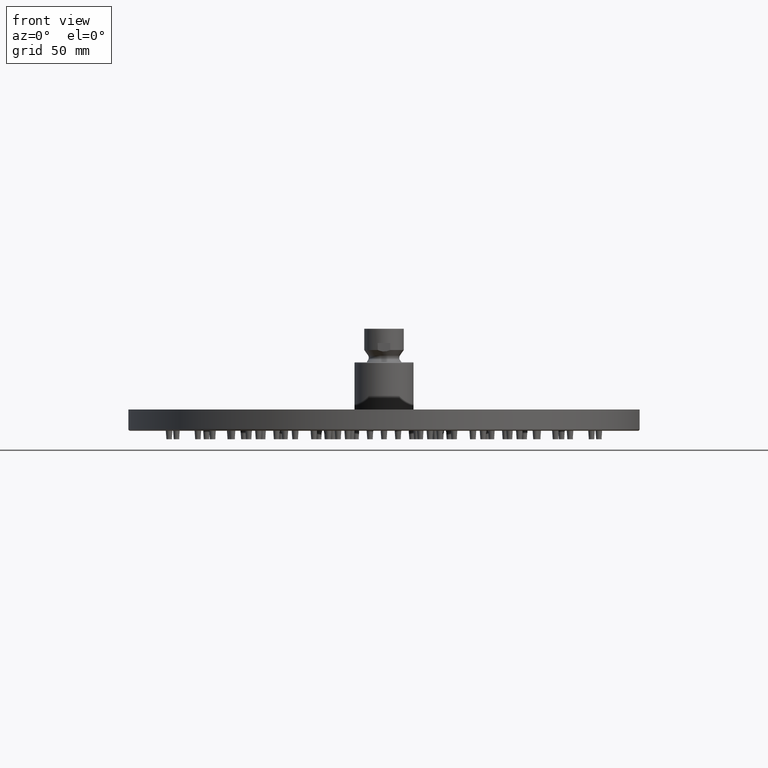
[diagram: clean part render]
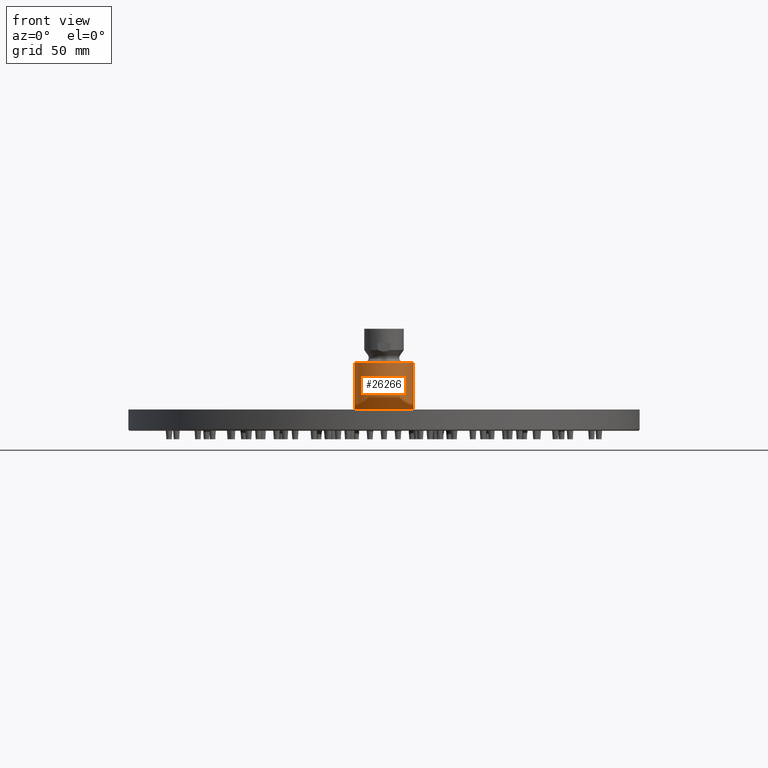
[diagram: same view with one face highlighted and labeled with its STEP entity id]
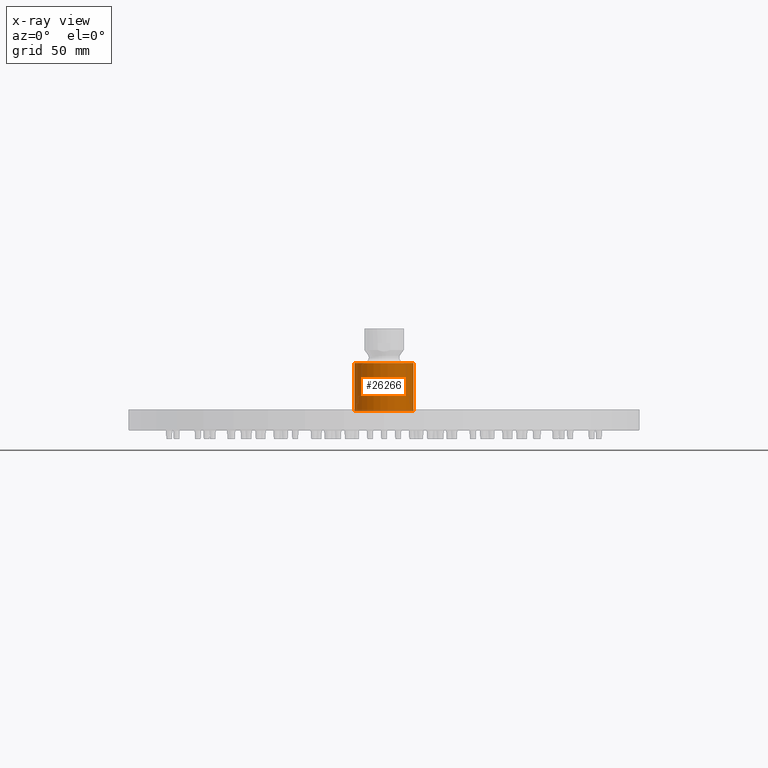
[diagram: x-ray of the same camera — body ghosted, the highlighted face saturated]
A machine part, front view. The second image highlights one B-rep face of the part: STEP entity #26266.
The next image is the same camera in x-ray: the body ghosted, the highlighted face saturated — about 3% of this face is hidden behind the body in this view.
In plain terms, the highlighted cylindrical surface (bore or boss wall) has radius 17.4 mm, axis along (0, -0, 1).
Its self-contained STEP definition (entity closure, byte-faithful):
#25982=CARTESIAN_POINT('',(17.4,0.,11.));
#25983=VERTEX_POINT('Vertex973',#25982);
#25984=CARTESIAN_POINT('',(-4.9960036108132E-016,7.7715611723761E-016,11.));
#25985=DIRECTION('',(0.,-0.,1.));
#25986=DIRECTION('',(1.,-4.46641446688281E-017,1.0208947352875E-016));
#25987=AXIS2_PLACEMENT_3D('',#25984,#25985,#25986);
#25988=CIRCLE('',#25987,17.4);
#25989=EDGE_CURVE('Edge973',#25983,#25983,#25988,.T.);
#26198=CARTESIAN_POINT('',(-17.4,2.13081505565094E-015,39.3));
#26199=VERTEX_POINT('Vertex2110',#26198);
#26200=CARTESIAN_POINT('',(17.4,0.,39.3));
#26201=VERTEX_POINT('Vertex982',#26200);
#26202=CARTESIAN_POINT('',(-2.1094237467878E-015,-2.66453525910038E-015,39.3));
#26203=DIRECTION('',(0.,0.,1.));
#26204=DIRECTION('',(-1.,2.75594845675363E-016,0.));
#26205=AXIS2_PLACEMENT_3D('',#26202,#26203,#26204);
#26206=CIRCLE('',#26205,17.4);
#26207=EDGE_CURVE('Edge3626',#26199,#26201,#26206,.T.);
#26209=CARTESIAN_POINT('',(1.11022302462516E-015,4.21884749357559E-015,39.3));
#26210=DIRECTION('',(0.,-0.,1.));
#26211=DIRECTION('',(1.,-2.42462499630781E-016,0.));
#26212=AXIS2_PLACEMENT_3D('',#26209,#26210,#26211);
#26213=CIRCLE('',#26212,17.4);
#26214=EDGE_CURVE('Edge3625',#26201,#26199,#26213,.T.);
#26254=ORIENTED_EDGE('Edgeuse7256',*,*,#26207,.F.);
#26255=ORIENTED_EDGE('Edgeuse7254',*,*,#26214,.F.);
#26256=EDGE_LOOP('',(#26254,#26255));
#26257=FACE_BOUND('',#26256,.T.);
#26258=ORIENTED_EDGE('Edgeuse1964',*,*,#25989,.T.);
#26259=EDGE_LOOP('',(#26258));
#26260=FACE_BOUND('',#26259,.T.);
#26261=CARTESIAN_POINT('',(4.9960036108132E-016,1.66533453693773E-016,9.585));
#26262=DIRECTION('',(0.,-0.,1.));
#26263=DIRECTION('',(1.,-9.57088814332032E-018,0.));
#26264=AXIS2_PLACEMENT_3D('',#26261,#26262,#26263);
#26265=CYLINDRICAL_SURFACE('',#26264,17.4);
#26266=ADVANCED_FACE('Face780',(#26257,#26260),#26265,.T.);